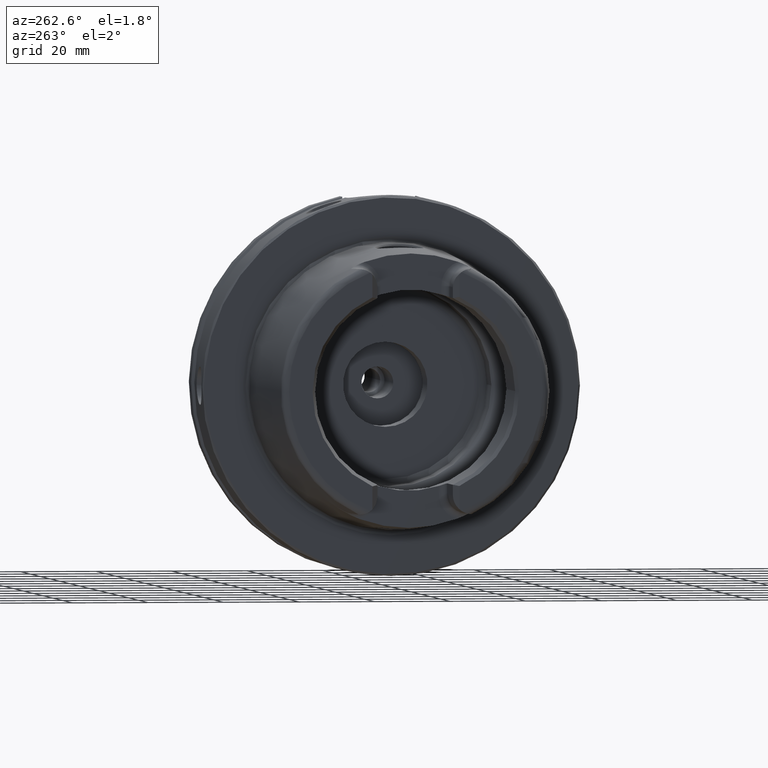
[diagram: clean part render]
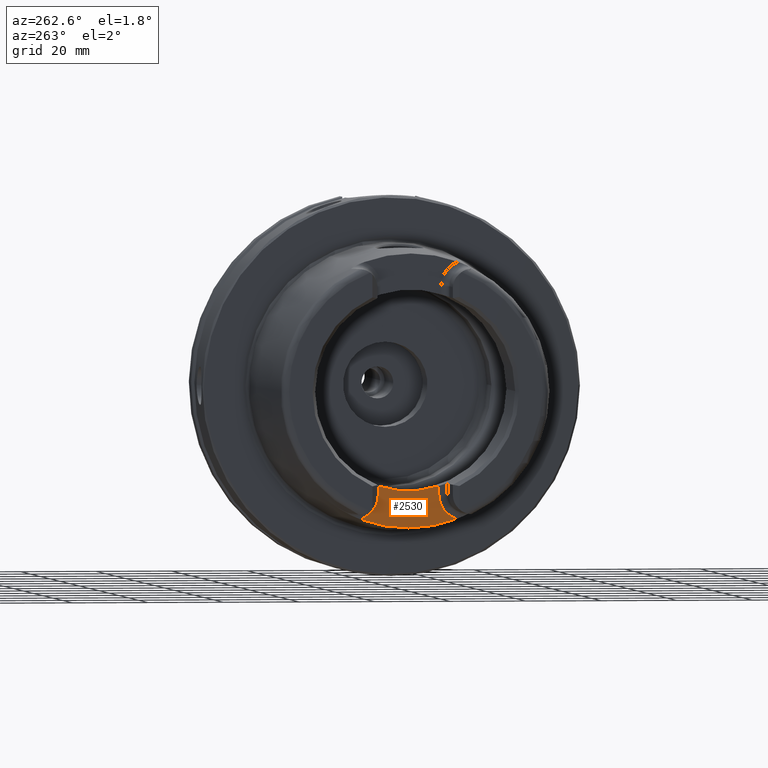
[diagram: same view with one face highlighted and labeled with its STEP entity id]
A machine part, auxiliary view. The second image highlights one B-rep face of the part: STEP entity #2530.
In plain terms, the highlighted planar face has unit normal (-1, 0, 0).
Its self-contained STEP definition (entity closure, byte-faithful):
#103=PLANE('',#2806);
#173=CIRCLE('',#2703,36.25399498998);
#224=CIRCLE('',#2800,6.88);
#227=CIRCLE('',#2807,26.5);
#228=CIRCLE('',#2808,6.88);
#516=FACE_OUTER_BOUND('',#663,.T.);
#663=EDGE_LOOP('',(#2214,#2215,#2216,#2217,#2218,#2219));
#885=LINE('',#5418,#1005);
#888=LINE('',#5430,#1008);
#1005=VECTOR('',#3410,10.);
#1008=VECTOR('',#3425,10.);
#1149=VERTEX_POINT('',#4494);
#1150=VERTEX_POINT('',#4505);
#1251=VERTEX_POINT('',#5402);
#1253=VERTEX_POINT('',#5407);
#1255=VERTEX_POINT('',#5427);
#1256=VERTEX_POINT('',#5429);
#1433=EDGE_CURVE('',#1149,#1150,#173,.T.);
#1587=EDGE_CURVE('',#1251,#1149,#224,.T.);
#1589=EDGE_CURVE('',#1253,#1251,#885,.T.);
#1594=EDGE_CURVE('',#1255,#1253,#227,.T.);
#1595=EDGE_CURVE('',#1256,#1255,#888,.T.);
#1596=EDGE_CURVE('',#1150,#1256,#228,.T.);
#2214=ORIENTED_EDGE('',*,*,#1587,.F.);
#2215=ORIENTED_EDGE('',*,*,#1589,.F.);
#2216=ORIENTED_EDGE('',*,*,#1594,.F.);
#2217=ORIENTED_EDGE('',*,*,#1595,.F.);
#2218=ORIENTED_EDGE('',*,*,#1596,.F.);
#2219=ORIENTED_EDGE('',*,*,#1433,.F.);
#2530=ADVANCED_FACE('',(#516),#103,.T.);
#2703=AXIS2_PLACEMENT_3D('',#4506,#3161,#3162);
#2800=AXIS2_PLACEMENT_3D('',#5404,#3406,#3407);
#2806=AXIS2_PLACEMENT_3D('',#5426,#3421,#3422);
#2807=AXIS2_PLACEMENT_3D('',#5428,#3423,#3424);
#2808=AXIS2_PLACEMENT_3D('',#5431,#3426,#3427);
#3161=DIRECTION('center_axis',(1.,0.,0.));
#3162=DIRECTION('ref_axis',(0.,1.,0.));
#3406=DIRECTION('center_axis',(-1.,0.,0.));
#3407=DIRECTION('ref_axis',(0.,0.510937901715381,-0.8596176246394));
#3410=DIRECTION('',(0.,0.,-1.));
#3421=DIRECTION('center_axis',(-1.,0.,0.));
#3422=DIRECTION('ref_axis',(0.,0.,1.));
#3423=DIRECTION('center_axis',(-1.,0.,0.));
#3424=DIRECTION('ref_axis',(0.,1.,0.));
#3425=DIRECTION('',(0.,0.,1.));
#3426=DIRECTION('center_axis',(-1.,0.,0.));
#3427=DIRECTION('ref_axis',(0.,-0.510937901715381,-0.8596176246394));
#4494=CARTESIAN_POINT('',(-35.,-12.7918651267415,-33.9222690767105));
#4505=CARTESIAN_POINT('',(-35.,12.7918651267415,-33.9222690767105));
#4506=CARTESIAN_POINT('Origin',(-35.,0.,0.));
#5402=CARTESIAN_POINT('',(-35.,-8.01,-27.37));
#5404=CARTESIAN_POINT('Origin',(-35.,-14.89,-27.37));
#5407=CARTESIAN_POINT('',(-35.,-8.01,-25.2604414054862));
#5418=CARTESIAN_POINT('',(-35.,-8.01,-28.685));
#5426=CARTESIAN_POINT('Origin',(-35.,8.88178419700125E-15,-30.));
#5427=CARTESIAN_POINT('',(-35.,8.01,-25.2604414054862));
#5428=CARTESIAN_POINT('Origin',(-35.,0.,0.));
#5429=CARTESIAN_POINT('',(-35.,8.01,-27.37));
#5430=CARTESIAN_POINT('',(-35.,8.01,-25.));
#5431=CARTESIAN_POINT('Origin',(-35.,14.89,-27.37));